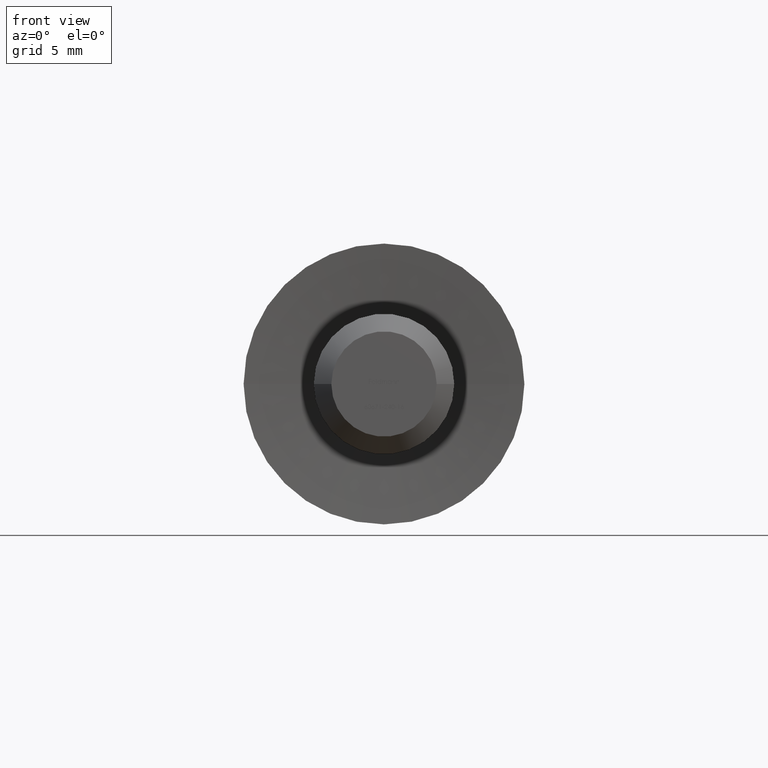
[diagram: clean part render]
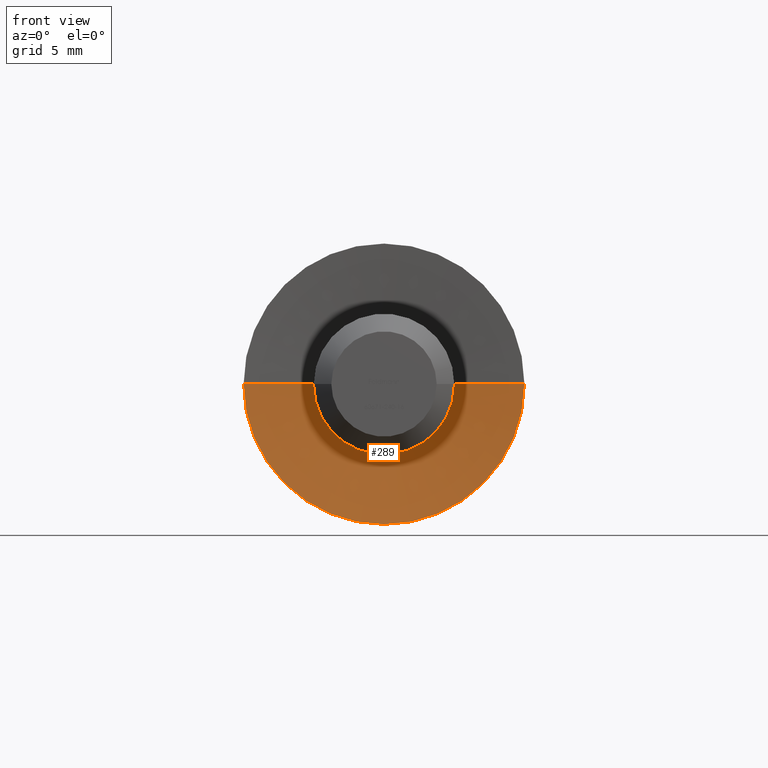
[diagram: same view with one face highlighted and labeled with its STEP entity id]
A machine part, front view. The second image highlights one B-rep face of the part: STEP entity #289.
In plain terms, the highlighted conical surface has half-angle 85 deg.
Its self-contained STEP definition (entity closure, byte-faithful):
#289 = ADVANCED_FACE ( 'NONE', ( #8379 ), #9190, .F. ) ;
#314 = DIRECTION ( 'NONE',  ( -4.956352788505162800E-017, -1.000000000000000000, -0.0000000000000000000 ) ) ;
#371 = VERTEX_POINT ( 'NONE', #2292 ) ;
#412 = ORIENTED_EDGE ( 'NONE', *, *, #4895, .F. ) ;
#1261 = EDGE_LOOP ( 'NONE', ( #5097, #6606, #12712, #412 ) ) ;
#2292 = CARTESIAN_POINT ( 'NONE',  ( -4.017431148549528400, 0.3484296262133183000, 4.919934196866055900E-016 ) ) ;
#2427 = LINE ( 'NONE', #9134, #3367 ) ;
#3194 = CIRCLE ( 'NONE', #11390, 4.017431148549524900 ) ;
#3367 = VECTOR ( 'NONE', #3906, 999.9999999999998900 ) ;
#3396 = CARTESIAN_POINT ( 'NONE',  ( 7.434529182757744400E-016, 0.0000000000000000000, 0.0000000000000000000 ) ) ;
#3516 = AXIS2_PLACEMENT_3D ( 'NONE', #12332, #4965, #13196 ) ;
#3906 = DIRECTION ( 'NONE',  ( -0.9961946980917468800, -0.08715574274764370500, 1.219986648345621900E-016 ) ) ;
#4381 = DIRECTION ( 'NONE',  ( 1.000000000000000000, -4.956352788505162800E-017, 0.0000000000000000000 ) ) ;
#4798 = EDGE_CURVE ( 'NONE', #371, #6466, #2427, .T. ) ;
#4895 = EDGE_CURVE ( 'NONE', #5503, #12419, #8659, .T. ) ;
#4965 = DIRECTION ( 'NONE',  ( -4.956352788505162800E-017, -1.000000000000000000, -0.0000000000000000000 ) ) ;
#5097 = ORIENTED_EDGE ( 'NONE', *, *, #8335, .F. ) ;
#5503 = VERTEX_POINT ( 'NONE', #9681 ) ;
#5696 = CARTESIAN_POINT ( 'NONE',  ( 8.000000000000000000, -4.336808689942017700E-016, 0.0000000000000000000 ) ) ;
#5855 = EDGE_CURVE ( 'NONE', #6466, #12419, #10109, .T. ) ;
#6466 = VERTEX_POINT ( 'NONE', #6838 ) ;
#6606 = ORIENTED_EDGE ( 'NONE', *, *, #4798, .T. ) ;
#6838 = CARTESIAN_POINT ( 'NONE',  ( -8.000000000000000000, 4.336808689942017700E-016, 9.797174393178825700E-016 ) ) ;
#7904 = CARTESIAN_POINT ( 'NONE',  ( 4.017431148549525800, 0.3484296262133179100, 0.0000000000000000000 ) ) ;
#7982 = DIRECTION ( 'NONE',  ( -4.956352788505162800E-017, -1.000000000000000000, -0.0000000000000000000 ) ) ;
#8335 = EDGE_CURVE ( 'NONE', #371, #5503, #3194, .T. ) ;
#8379 = FACE_OUTER_BOUND ( 'NONE', #1261, .T. ) ;
#8659 = LINE ( 'NONE', #7904, #12380 ) ;
#9134 = CARTESIAN_POINT ( 'NONE',  ( -4.017431148549524000, 0.3484296262133183000, 4.919934196866051000E-016 ) ) ;
#9190 = CONICAL_SURFACE ( 'NONE', #3516, 4.017431148549524900, 1.483529864195194600 ) ;
#9681 = CARTESIAN_POINT ( 'NONE',  ( 4.017431148549530200, 0.3484296262133179100, 0.0000000000000000000 ) ) ;
#10109 = CIRCLE ( 'NONE', #12775, 8.000000000000001800 ) ;
#11390 = AXIS2_PLACEMENT_3D ( 'NONE', #13124, #7982, #13172 ) ;
#12332 = CARTESIAN_POINT ( 'NONE',  ( 7.607223197705763100E-016, 0.3484296262133180800, 0.0000000000000000000 ) ) ;
#12380 = VECTOR ( 'NONE', #13145, 999.9999999999998900 ) ;
#12419 = VERTEX_POINT ( 'NONE', #5696 ) ;
#12712 = ORIENTED_EDGE ( 'NONE', *, *, #5855, .T. ) ;
#12775 = AXIS2_PLACEMENT_3D ( 'NONE', #3396, #314, #4381 ) ;
#13124 = CARTESIAN_POINT ( 'NONE',  ( 7.607223197705763100E-016, 0.3484296262133180800, 0.0000000000000000000 ) ) ;
#13145 = DIRECTION ( 'NONE',  ( 0.9961946980917468800, -0.08715574274764383000, 0.0000000000000000000 ) ) ;
#13172 = DIRECTION ( 'NONE',  ( 1.000000000000000000, -5.397489751016395900E-017, 0.0000000000000000000 ) ) ;
#13196 = DIRECTION ( 'NONE',  ( 1.000000000000000000, -5.397489751016395900E-017, 0.0000000000000000000 ) ) ;